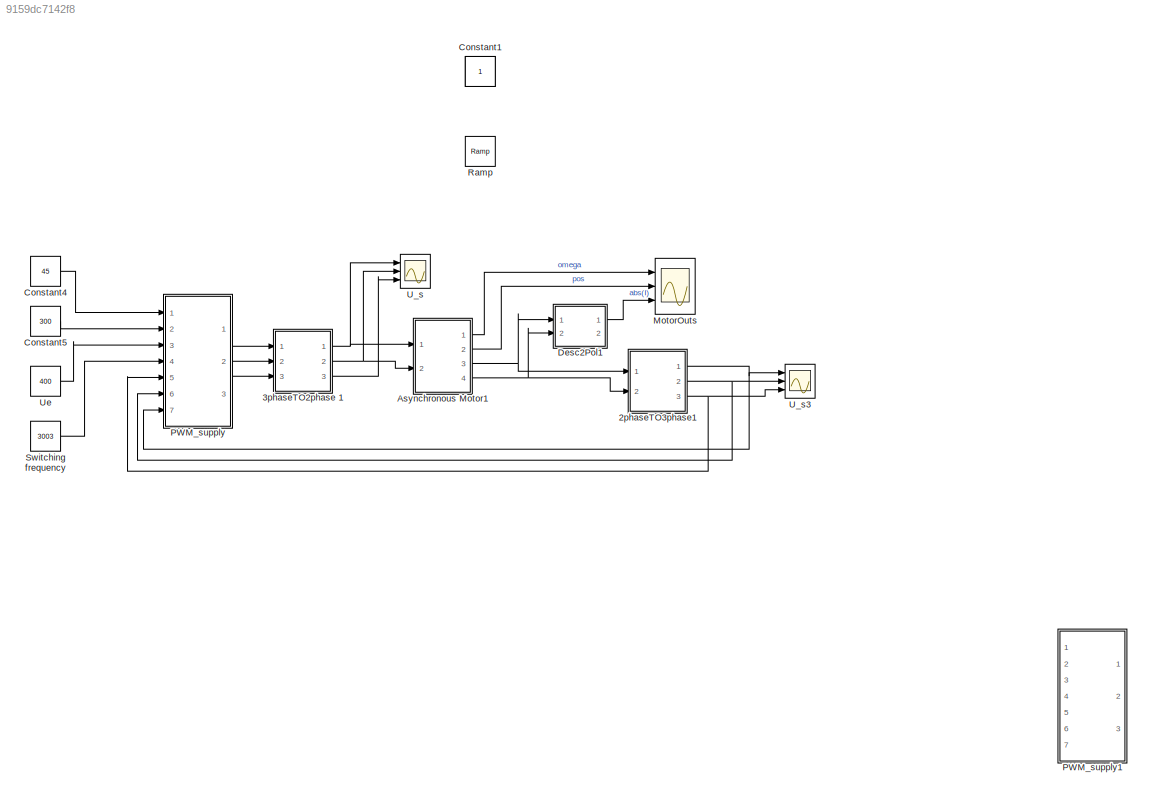
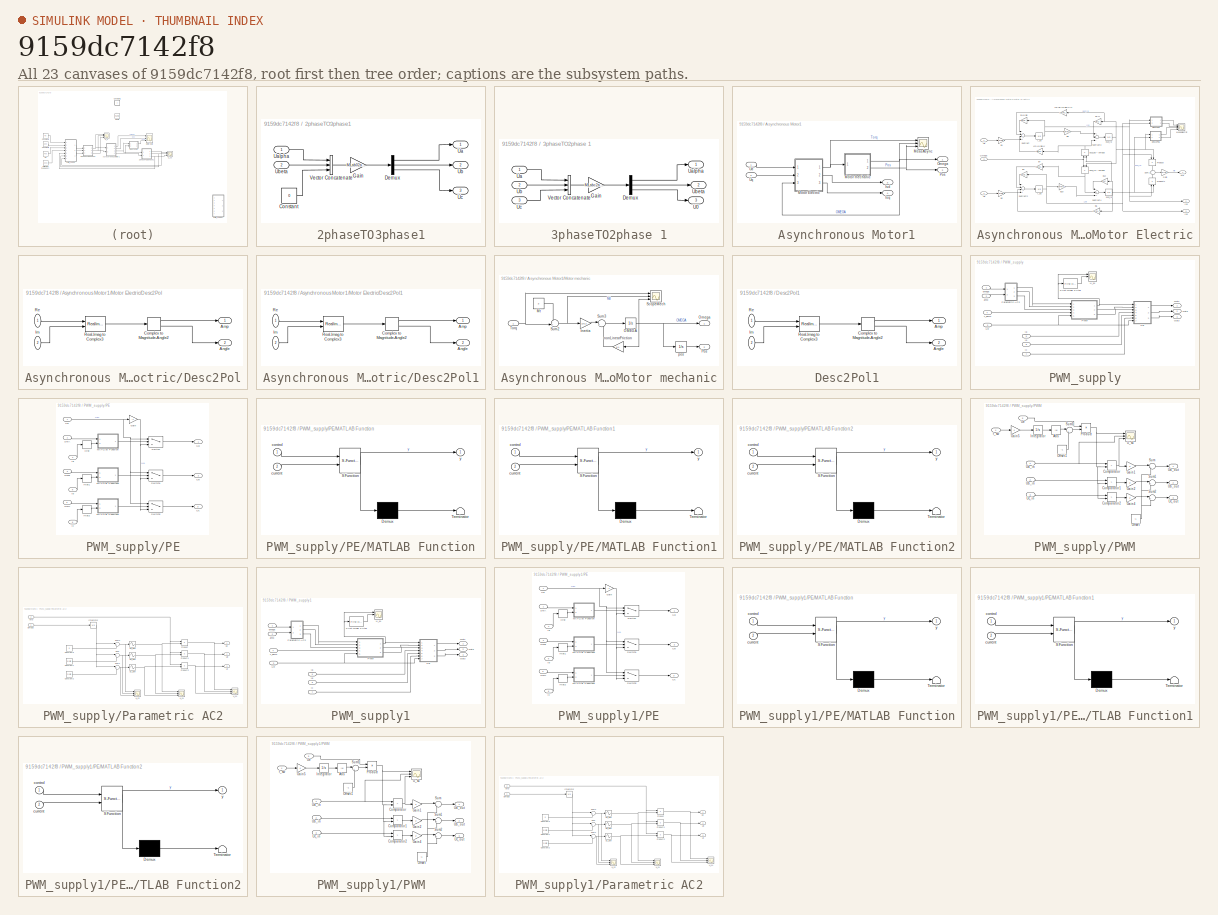
[diagram: thumbnail index - all 23 canvases of the model, root first then tree order]
MODEL slx_9159dc7142f8
KIND model
CONFIG AbsTol = auto
CONFIG FixedStep = 0.00003
CONFIG MaxStep = auto
CONFIG MinStep = auto
CONFIG RelTol = 1e-3
CONFIG SampleTimeConstraint = Unconstrained
CONFIG Solver = FixedStepAuto
CONFIG SolverMode = Auto
CONFIG SolverName = FixedStepAuto
CONFIG StartTime = 0.0
CONFIG StopTime = 3
BLOCK [Constant]  
  IOType = siggen
BLOCK [SubSystem] 2phaseTO3phase1
  Ports = [2, 3]
  RequestExecContextInheritance = off
  Variant = off
BLOCK [Constant] 2phaseTO3phase1/Constant
  Value = 0
BLOCK [Demux] 2phaseTO3phase1/Demux
  DisplayOption = bar
  Outputs = 3
  Ports = [1, 3]
BLOCK [Gain] 2phaseTO3phase1/Gain
  Gain = M_ab02abc
  Multiplication = Matrix(K*u)
  OutDataTypeStr = Inherit: Inherit via internal rule
  ParamDataTypeStr = Inherit: Inherit via internal rule
  SaturateOnIntegerOverflow = off
BLOCK [Outport] 2phaseTO3phase1/Ua
  IconDisplay = Port number
BLOCK [Inport] 2phaseTO3phase1/Ualpha
  IconDisplay = Port number
BLOCK [Outport] 2phaseTO3phase1/Ub
  IconDisplay = Port number
  Port = 2
BLOCK [Inport] 2phaseTO3phase1/Ubeta
  IconDisplay = Port number
  Port = 2
BLOCK [Outport] 2phaseTO3phase1/Uc
  IconDisplay = Port number
  Port = 3
BLOCK [Concatenate] 2phaseTO3phase1/Vector Concatenate
  NumInputs = 3
  Ports = [3, 1]
BLOCK [SubSystem] 3phaseTO2phase 1
  Ports = [3, 3]
  RequestExecContextInheritance = off
  Variant = off
BLOCK [Demux] 3phaseTO2phase 1/Demux
  DisplayOption = bar
  Outputs = 3
  Ports = [1, 3]
BLOCK [Gain] 3phaseTO2phase 1/Gain
  Gain = M_abc2ab0
  Multiplication = Matrix(K*u)
  OutDataTypeStr = Inherit: Inherit via internal rule
  ParamDataTypeStr = Inherit: Inherit via internal rule
  SaturateOnIntegerOverflow = off
BLOCK [Outport] 3phaseTO2phase 1/U0
  IconDisplay = Port number
  Port = 3
BLOCK [Inport] 3phaseTO2phase 1/Ua
  IconDisplay = Port number
BLOCK [Outport] 3phaseTO2phase 1/Ualpha
  IconDisplay = Port number
BLOCK [Inport] 3phaseTO2phase 1/Ub
  IconDisplay = Port number
  Port = 2
BLOCK [Outport] 3phaseTO2phase 1/Ubeta
  IconDisplay = Port number
  Port = 2
BLOCK [Inport] 3phaseTO2phase 1/Uc
  IconDisplay = Port number
  Port = 3
BLOCK [Concatenate] 3phaseTO2phase 1/Vector Concatenate
  NumInputs = 3
  Ports = [3, 1]
BLOCK [SubSystem] Asynchronous Motor1
  Ports = [2, 4]
  RequestExecContextInheritance = off
  Variant = off
BLOCK [Outport] Asynchronous Motor1/Isd
  IconDisplay = Port number
  Port = 3
BLOCK [Outport] Asynchronous Motor1/Isq
  IconDisplay = Port number
  Port = 4
BLOCK [Scope] Asynchronous Motor1/MeasAsync
  NumInputPorts = 3
  Ports = [3]
  ScopeSpecificationString = Simulink.scopes.TimeScopeBlockCfg('CurrentConfiguration', extmgr.ConfigurationSet(extmgr.Configuration('Core','General UI',true),extmgr.Configuration('Core','Source UI',true),extmgr.Configuration('Sources','WiredSimulink',true,'DataLoggingVariableName','ScopeData3'),extmgr.Configuration('Visuals','Time Domain',true,'SerializedDisplays',{struct('MinYLimReal','-4.72264','MaxYLimReal','13.11382','YLa...<+1438ch>
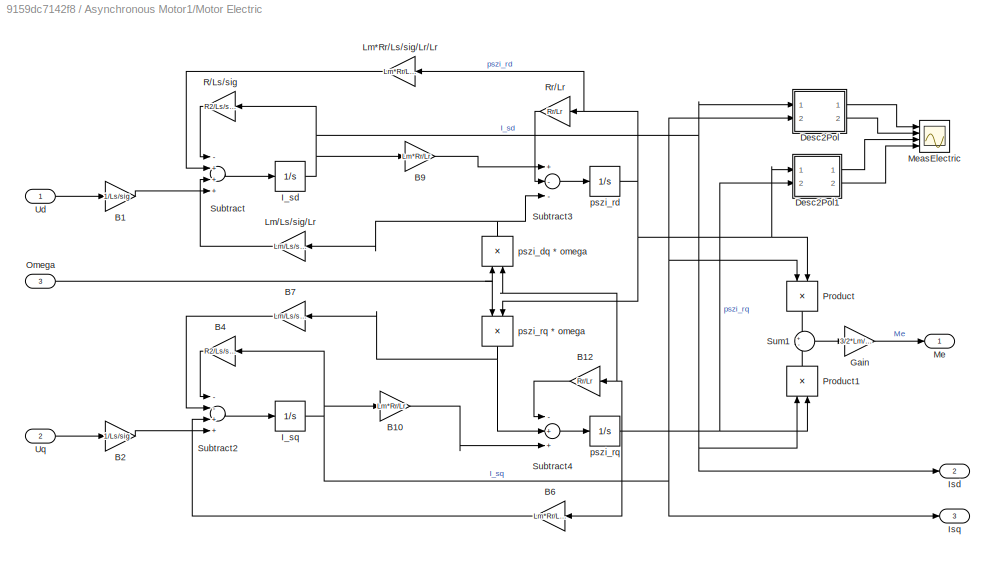
BLOCK [SubSystem] Asynchronous Motor1/Motor Electric
  Ports = [3, 3]
  RequestExecContextInheritance = off
  Variant = off
BLOCK [Gain] Asynchronous Motor1/Motor Electric/B1
  Gain = 1/Ls/sig
  Multiplication = Matrix(K*u)
  OutDataTypeStr = Inherit: Inherit via internal rule
  ParamDataTypeStr = Inherit: Inherit via internal rule
  SaturateOnIntegerOverflow = off
BLOCK [Gain] Asynchronous Motor1/Motor Electric/B10
  Gain = Lm*Rr/Lr
  Multiplication = Matrix(K*u)
  OutDataTypeStr = Inherit: Inherit via internal rule
  ParamDataTypeStr = Inherit: Inherit via internal rule
  SaturateOnIntegerOverflow = off
BLOCK [Gain] Asynchronous Motor1/Motor Electric/B12
  Gain = Rr/Lr
  Multiplication = Matrix(K*u)
  OutDataTypeStr = Inherit: Inherit via internal rule
  ParamDataTypeStr = Inherit: Inherit via internal rule
  SaturateOnIntegerOverflow = off
BLOCK [Gain] Asynchronous Motor1/Motor Electric/B2
  Gain = 1/Ls/sig
  Multiplication = Matrix(K*u)
  OutDataTypeStr = Inherit: Inherit via internal rule
  ParamDataTypeStr = Inherit: Inherit via internal rule
  SaturateOnIntegerOverflow = off
BLOCK [Gain] Asynchronous Motor1/Motor Electric/B4
  Gain = R2/Ls/sig
  Multiplication = Matrix(K*u)
  OutDataTypeStr = Inherit: Inherit via internal rule
  ParamDataTypeStr = Inherit: Inherit via internal rule
  SaturateOnIntegerOverflow = off
BLOCK [Gain] Asynchronous Motor1/Motor Electric/B6
  Gain = Lm*Rr/Ls/sig/Lr/Lr
  Multiplication = Matrix(K*u)
  OutDataTypeStr = Inherit: Inherit via internal rule
  ParamDataTypeStr = Inherit: Inherit via internal rule
  SaturateOnIntegerOverflow = off
BLOCK [Gain] Asynchronous Motor1/Motor Electric/B7
  Gain = Lm/Ls/sig/Lr
  Multiplication = Matrix(K*u)
  OutDataTypeStr = Inherit: Inherit via internal rule
  ParamDataTypeStr = Inherit: Inherit via internal rule
  SaturateOnIntegerOverflow = off
BLOCK [Gain] Asynchronous Motor1/Motor Electric/B9
  Gain = Lm*Rr/Lr
  Multiplication = Matrix(K*u)
  OutDataTypeStr = Inherit: Inherit via internal rule
  ParamDataTypeStr = Inherit: Inherit via internal rule
  SaturateOnIntegerOverflow = off
BLOCK [SubSystem] Asynchronous Motor1/Motor Electric/Desc2Pol
  Ports = [2, 2]
  RequestExecContextInheritance = off
  Variant = off
BLOCK [Outport] Asynchronous Motor1/Motor Electric/Desc2Pol/Amp
  IconDisplay = Port number
BLOCK [Outport] Asynchronous Motor1/Motor Electric/Desc2Pol/Angle
  IconDisplay = Port number
  Port = 2
BLOCK [ComplexToMagnitudeAngle] Asynchronous Motor1/Motor Electric/Desc2Pol/Complex to Magnitude-Angle2
  Ports = [1, 2]
BLOCK [Inport] Asynchronous Motor1/Motor Electric/Desc2Pol/Im
  IconDisplay = Port number
  Port = 2
BLOCK [Inport] Asynchronous Motor1/Motor Electric/Desc2Pol/Re
  IconDisplay = Port number
BLOCK [RealImagToComplex] Asynchronous Motor1/Motor Electric/Desc2Pol/Real-Imag to Complex3
  Ports = [2, 1]
BLOCK [SubSystem] Asynchronous Motor1/Motor Electric/Desc2Pol1
  Ports = [2, 2]
  RequestExecContextInheritance = off
  Variant = off
BLOCK [Outport] Asynchronous Motor1/Motor Electric/Desc2Pol1/Amp
  IconDisplay = Port number
BLOCK [Outport] Asynchronous Motor1/Motor Electric/Desc2Pol1/Angle
  IconDisplay = Port number
  Port = 2
BLOCK [ComplexToMagnitudeAngle] Asynchronous Motor1/Motor Electric/Desc2Pol1/Complex to Magnitude-Angle2
  Ports = [1, 2]
BLOCK [Inport] Asynchronous Motor1/Motor Electric/Desc2Pol1/Im
  IconDisplay = Port number
  Port = 2
BLOCK [Inport] Asynchronous Motor1/Motor Electric/Desc2Pol1/Re
  IconDisplay = Port number
BLOCK [RealImagToComplex] Asynchronous Motor1/Motor Electric/Desc2Pol1/Real-Imag to Complex3
  Ports = [2, 1]
BLOCK [Gain] Asynchronous Motor1/Motor Electric/Gain
  Gain = 3/2*Lm/Lr
  OutDataTypeStr = Inherit: Inherit via internal rule
  ParamDataTypeStr = Inherit: Inherit via internal rule
  SaturateOnIntegerOverflow = off
BLOCK [Integrator] Asynchronous Motor1/Motor Electric/I_sd
  Ports = [1, 1]
BLOCK [Integrator] Asynchronous Motor1/Motor Electric/I_sq
  Ports = [1, 1]
BLOCK [Outport] Asynchronous Motor1/Motor Electric/Isd
  IconDisplay = Port number
  Port = 2
BLOCK [Outport] Asynchronous Motor1/Motor Electric/Isq
  IconDisplay = Port number
  Port = 3
BLOCK [Gain] Asynchronous Motor1/Motor Electric/Lm*Rr//Ls//sig//Lr//Lr
  Gain = Lm*Rr/Ls/sig/Lr/Lr
  Multiplication = Matrix(K*u)
  OutDataTypeStr = Inherit: Inherit via internal rule
  ParamDataTypeStr = Inherit: Inherit via internal rule
  SaturateOnIntegerOverflow = off
BLOCK [Gain] Asynchronous Motor1/Motor Electric/Lm//Ls//sig//Lr
  Gain = Lm/Ls/sig/Lr
  Multiplication = Matrix(K*u)
  OutDataTypeStr = Inherit: Inherit via internal rule
  ParamDataTypeStr = Inherit: Inherit via internal rule
  SaturateOnIntegerOverflow = off
BLOCK [Outport] Asynchronous Motor1/Motor Electric/Me
  IconDisplay = Port number
BLOCK [Scope] Asynchronous Motor1/Motor Electric/MeasElectric
  NumInputPorts = 4
  Ports = [4]
  ScopeSpecificationString = Simulink.scopes.TimeScopeBlockCfg('CurrentConfiguration', extmgr.ConfigurationSet(extmgr.Configuration('Core','General UI',true),extmgr.Configuration('Core','Source UI',true),extmgr.Configuration('Sources','WiredSimulink',true,'DataLoggingVariableName','ScopeData2'),extmgr.Configuration('Visuals','Time Domain',true,'SerializedDisplays',{struct('MinYLimReal','-15.09969','MaxYLimReal','104.48314','Y...<+1472ch>
BLOCK [Inport] Asynchronous Motor1/Motor Electric/Omega
  IconDisplay = Port number
  Port = 3
BLOCK [Product] Asynchronous Motor1/Motor Electric/Product
  InputSameDT = off
  OutDataTypeStr = Inherit: Inherit via internal rule
  Ports = [2, 1]
  RndMeth = Floor
  SaturateOnIntegerOverflow = off
BLOCK [Product] Asynchronous Motor1/Motor Electric/Product1
  InputSameDT = off
  OutDataTypeStr = Inherit: Inherit via internal rule
  Ports = [2, 1]
  RndMeth = Floor
  SaturateOnIntegerOverflow = off
BLOCK [Gain] Asynchronous Motor1/Motor Electric/R//Ls//sig
  Gain = R2/Ls/sig
  Multiplication = Matrix(K*u)
  OutDataTypeStr = Inherit: Inherit via internal rule
  ParamDataTypeStr = Inherit: Inherit via internal rule
  SaturateOnIntegerOverflow = off
BLOCK [Gain] Asynchronous Motor1/Motor Electric/Rr//Lr
  Gain = Rr/Lr
  Multiplication = Matrix(K*u)
  OutDataTypeStr = Inherit: Inherit via internal rule
  ParamDataTypeStr = Inherit: Inherit via internal rule
  SaturateOnIntegerOverflow = off
BLOCK [Sum] Asynchronous Motor1/Motor Electric/Subtract
  InputSameDT = off
  Inputs = -+++
  OutDataTypeStr = Inherit: Inherit via internal rule
  Ports = [4, 1]
  SaturateOnIntegerOverflow = off
BLOCK [Sum] Asynchronous Motor1/Motor Electric/Subtract2
  InputSameDT = off
  Inputs = --++
  OutDataTypeStr = Inherit: Inherit via internal rule
  Ports = [4, 1]
  SaturateOnIntegerOverflow = off
BLOCK [Sum] Asynchronous Motor1/Motor Electric/Subtract3
  InputSameDT = off
  Inputs = +--
  OutDataTypeStr = Inherit: Inherit via internal rule
  Ports = [3, 1]
  SaturateOnIntegerOverflow = off
BLOCK [Sum] Asynchronous Motor1/Motor Electric/Subtract4
  InputSameDT = off
  Inputs = -++
  OutDataTypeStr = Inherit: Inherit via internal rule
  Ports = [3, 1]
  SaturateOnIntegerOverflow = off
BLOCK [Sum] Asynchronous Motor1/Motor Electric/Sum1
  IconShape = round
  InputSameDT = off
  Inputs = +-
  OutDataTypeStr = Inherit: Inherit via internal rule
  Ports = [2, 1]
  SaturateOnIntegerOverflow = off
BLOCK [Inport] Asynchronous Motor1/Motor Electric/Ud
  IconDisplay = Port number
BLOCK [Inport] Asynchronous Motor1/Motor Electric/Uq
  IconDisplay = Port number
  Port = 2
BLOCK [Product] Asynchronous Motor1/Motor Electric/pszi_dq * omega
  InputSameDT = off
  OutDataTypeStr = Inherit: Inherit via internal rule
  Ports = [2, 1]
  RndMeth = Floor
  SaturateOnIntegerOverflow = off
BLOCK [Integrator] Asynchronous Motor1/Motor Electric/pszi_rd
  Ports = [1, 1]
BLOCK [Integrator] Asynchronous Motor1/Motor Electric/pszi_rq 
  Ports = [1, 1]
BLOCK [Product] Asynchronous Motor1/Motor Electric/pszi_rq * omega
  InputSameDT = off
  OutDataTypeStr = Inherit: Inherit via internal rule
  Ports = [2, 1]
  RndMeth = Floor
  SaturateOnIntegerOverflow = off
BLOCK [SubSystem] Asynchronous Motor1/Motor mechanic
  Ports = [1, 2]
  RequestExecContextInheritance = off
  Variant = off
BLOCK [Gain] Asynchronous Motor1/Motor mechanic/Inertia
  Gain = 1/0.2
  OutDataTypeStr = Inherit: Inherit via internal rule
  ParamDataTypeStr = Inherit: Inherit via internal rule
  SaturateOnIntegerOverflow = off
BLOCK [Constant] Asynchronous Motor1/Motor mechanic/Mt
  Value = 3
BLOCK [Integrator] Asynchronous Motor1/Motor mechanic/OMEGA
  Ports = [1, 1]
BLOCK [Outport] Asynchronous Motor1/Motor mechanic/Omega
  IconDisplay = Port number
BLOCK [Outport] Asynchronous Motor1/Motor mechanic/Pos
  IconDisplay = Port number
  Port = 2
BLOCK [Scope] Asynchronous Motor1/Motor mechanic/ScopeMech
  NumInputPorts = 3
  Ports = [3]
  ScopeSpecificationString = Simulink.scopes.TimeScopeBlockCfg('CurrentConfiguration', extmgr.ConfigurationSet(extmgr.Configuration('Core','General UI',true),extmgr.Configuration('Core','Source UI',true),extmgr.Configuration('Sources','WiredSimulink',true,'DataLoggingVariableName','ScopeData2'),extmgr.Configuration('Visuals','Time Domain',true,'SerializedDisplays',{struct('MinYLimReal','90.00000','MaxYLimReal','110.00000','YL...<+2799ch>
BLOCK [Sum] Asynchronous Motor1/Motor mechanic/Sum2
  IconShape = round
  InputSameDT = off
  Inputs = -+|
  OutDataTypeStr = Inherit: Inherit via internal rule
  Ports = [2, 1]
  SaturateOnIntegerOverflow = off
BLOCK [Sum] Asynchronous Motor1/Motor mechanic/Sum3
  IconShape = round
  InputSameDT = off
  Inputs = |+-
  OutDataTypeStr = Inherit: Inherit via internal rule
  Ports = [2, 1]
  SaturateOnIntegerOverflow = off
BLOCK [Inport] Asynchronous Motor1/Motor mechanic/Torq 
  IconDisplay = Port number
BLOCK [Gain] Asynchronous Motor1/Motor mechanic/nonLinearFriction
  Gain = 0.1
  OutDataTypeStr = Inherit: Inherit via internal rule
  ParamDataTypeStr = Inherit: Inherit via internal rule
  SaturateOnIntegerOverflow = off
BLOCK [Integrator] Asynchronous Motor1/Motor mechanic/pos
  Ports = [1, 1]
  WrapState = on
BLOCK [Outport] Asynchronous Motor1/Omega
  IconDisplay = Port number
BLOCK [Outport] Asynchronous Motor1/Pos
  IconDisplay = Port number
  Port = 2
BLOCK [Inport] Asynchronous Motor1/Ud
  IconDisplay = Port number
BLOCK [Inport] Asynchronous Motor1/Uq
  IconDisplay = Port number
  Port = 2
BLOCK [Constant] Constant1
  IOType = siggen
BLOCK [Constant] Constant4
  Value = 45
BLOCK [Constant] Constant5
  Value = 300
BLOCK [SubSystem] Desc2Pol1
  Ports = [2, 2]
  RequestExecContextInheritance = off
  Variant = off
BLOCK [Outport] Desc2Pol1/Amp
  IconDisplay = Port number
BLOCK [Outport] Desc2Pol1/Angle
  IconDisplay = Port number
  Port = 2
BLOCK [ComplexToMagnitudeAngle] Desc2Pol1/Complex to Magnitude-Angle2
  Ports = [1, 2]
BLOCK [Inport] Desc2Pol1/Im
  IconDisplay = Port number
  Port = 2
BLOCK [Inport] Desc2Pol1/Re
  IconDisplay = Port number
BLOCK [RealImagToComplex] Desc2Pol1/Real-Imag to Complex3
  Ports = [2, 1]
BLOCK [Scope] MotorOuts
  NumInputPorts = 3
  Ports = [3]
  ScopeSpecificationString = Simulink.scopes.TimeScopeBlockCfg('CurrentConfiguration', extmgr.ConfigurationSet(extmgr.Configuration('Core','General UI',true),extmgr.Configuration('Core','Source UI',true),extmgr.Configuration('Sources','WiredSimulink',true,'DataLoggingVariableName','ScopeData1','DataLogging',true),extmgr.Configuration('Visuals','Time Domain',true,'SerializedDisplays',{struct('MinYLimReal','-9.96539','MaxYLimRe...<+1682ch>
BLOCK [SubSystem] PWM_supply
  Ports = [7, 3]
  RequestExecContextInheritance = off
  Variant = off
BLOCK [Reference] PWM_supply/First-Order Filter  REF=powerlib_meascontrol/Filters/First-Order
Filter
  Ports = [1, 1]
  SourceBlock = powerlib_meascontrol/Filters/First-Order\nFilter
  SourceType = First-Order Filter
BLOCK [Inport] PWM_supply/Ia
  IconDisplay = Port number
  Port = 5
BLOCK [Inport] PWM_supply/Ib
  IconDisplay = Port number
  Port = 6
BLOCK [Inport] PWM_supply/Ic
  IconDisplay = Port number
  Port = 7
BLOCK [Outport] PWM_supply/Out1
  IconDisplay = Port number
BLOCK [Outport] PWM_supply/Out2
  IconDisplay = Port number
  Port = 2
BLOCK [Outport] PWM_supply/Out3
  IconDisplay = Port number
  Port = 3
BLOCK [SubSystem] PWM_supply/PE
  Ports = [7, 3]
  RequestExecContextInheritance = off
  Variant = off
BLOCK [Gain] PWM_supply/PE/Gain
  Gain = -1
  OutDataTypeStr = Inherit: Inherit via internal rule
  ParamDataTypeStr = Inherit: Inherit via internal rule
  SaturateOnIntegerOverflow = off
BLOCK [Relay] PWM_supply/PE/Hist
  InputProcessing = Elements as channels (sample based)
  OffOutputValue = -1
  OffSwitchValue = -0.1
  OnSwitchValue = 0.1
BLOCK [Relay] PWM_supply/PE/Hist1
  InputProcessing = Elements as channels (sample based)
  OffOutputValue = -1
  OffSwitchValue = -0.1
  OnSwitchValue = 0.1
BLOCK [Relay] PWM_supply/PE/Hist2
  InputProcessing = Elements as channels (sample based)
  OffOutputValue = -1
  OffSwitchValue = -0.1
  OnSwitchValue = 0.1
BLOCK [Inport] PWM_supply/PE/Ia
  IconDisplay = Port number
  Port = 4
BLOCK [Inport] PWM_supply/PE/Ib
  IconDisplay = Port number
  Port = 5
BLOCK [Inport] PWM_supply/PE/Ic
  IconDisplay = Port number
  Port = 6
BLOCK [SubSystem] PWM_supply/PE/MATLAB Function
  ErrorFcn = Stateflow.Translate.translate
  PermitHierarchicalResolution = ExplicitOnly
  Ports = [2, 1]
  RequestExecContextInheritance = off
  SFBlockType = MATLAB Function
  TreatAsAtomicUnit = on
  Variant = off
BLOCK [Demux] PWM_supply/PE/MATLAB Function/ Demux 
  Outputs = 1
  Ports = [1, 1]
BLOCK [S-Function] PWM_supply/PE/MATLAB Function/ SFunction 
  EnableBusSupport = on
  FunctionName = sf_sfun
  PortCounts = [2 2]
  Ports = [2, 2]
  SFunctionDeploymentMode = off
  Tag = Stateflow S-Function constant_f_V_PWM 2
BLOCK [Terminator] PWM_supply/PE/MATLAB Function/ Terminator 
BLOCK [Inport] PWM_supply/PE/MATLAB Function/control
  IconDisplay = Port number
BLOCK [Inport] PWM_supply/PE/MATLAB Function/current
  IconDisplay = Port number
  Port = 2
BLOCK [Outport] PWM_supply/PE/MATLAB Function/y
  IconDisplay = Port number
BLOCK [SubSystem] PWM_supply/PE/MATLAB Function1
  ErrorFcn = Stateflow.Translate.translate
  PermitHierarchicalResolution = ExplicitOnly
  Ports = [2, 1]
  RequestExecContextInheritance = off
  SFBlockType = MATLAB Function
  TreatAsAtomicUnit = on
  Variant = off
BLOCK [Demux] PWM_supply/PE/MATLAB Function1/ Demux 
  Outputs = 1
  Ports = [1, 1]
BLOCK [S-Function] PWM_supply/PE/MATLAB Function1/ SFunction 
  EnableBusSupport = on
  FunctionName = sf_sfun
  PortCounts = [2 2]
  Ports = [2, 2]
  SFunctionDeploymentMode = off
  Tag = Stateflow S-Function constant_f_V_PWM 1
BLOCK [Terminator] PWM_supply/PE/MATLAB Function1/ Terminator 
BLOCK [Inport] PWM_supply/PE/MATLAB Function1/control
  IconDisplay = Port number
BLOCK [Inport] PWM_supply/PE/MATLAB Function1/current
  IconDisplay = Port number
  Port = 2
BLOCK [Outport] PWM_supply/PE/MATLAB Function1/y
  IconDisplay = Port number
BLOCK [SubSystem] PWM_supply/PE/MATLAB Function2
  ErrorFcn = Stateflow.Translate.translate
  PermitHierarchicalResolution = ExplicitOnly
  Ports = [2, 1]
  RequestExecContextInheritance = off
  SFBlockType = MATLAB Function
  TreatAsAtomicUnit = on
  Variant = off
BLOCK [Demux] PWM_supply/PE/MATLAB Function2/ Demux 
  Outputs = 1
  Ports = [1, 1]
BLOCK [S-Function] PWM_supply/PE/MATLAB Function2/ SFunction 
  EnableBusSupport = on
  FunctionName = sf_sfun
  PortCounts = [2 2]
  Ports = [2, 2]
  SFunctionDeploymentMode = off
  Tag = Stateflow S-Function constant_f_V_PWM 3
BLOCK [Terminator] PWM_supply/PE/MATLAB Function2/ Terminator 
BLOCK [Inport] PWM_supply/PE/MATLAB Function2/control
  IconDisplay = Port number
BLOCK [Inport] PWM_supply/PE/MATLAB Function2/current
  IconDisplay = Port number
  Port = 2
BLOCK [Outport] PWM_supply/PE/MATLAB Function2/y
  IconDisplay = Port number
BLOCK [Inport] PWM_supply/PE/SwA
  IconDisplay = Port number
BLOCK [Inport] PWM_supply/PE/SwB
  IconDisplay = Port number
  Port = 2
BLOCK [Inport] PWM_supply/PE/SwC
  IconDisplay = Port number
  Port = 3
BLOCK [Switch] PWM_supply/PE/Switch
  Criteria = u2 > Threshold
  InputSameDT = off
  SaturateOnIntegerOverflow = off
  Threshold = 0.5
BLOCK [Switch] PWM_supply/PE/Switch1
  Criteria = u2 > Threshold
  InputSameDT = off
  SaturateOnIntegerOverflow = off
  Threshold = 0.5
BLOCK [Switch] PWM_supply/PE/Switch2
  Criteria = u2 > Threshold
  InputSameDT = off
  SaturateOnIntegerOverflow = off
  Threshold = 0.5
BLOCK [Outport] PWM_supply/PE/Ua
  IconDisplay = Port number
BLOCK [Outport] PWM_supply/PE/Ub
  IconDisplay = Port number
  Port = 2
BLOCK [Outport] PWM_supply/PE/Uc
  IconDisplay = Port number
  Port = 3
BLOCK [Inport] PWM_supply/PE/Ue
  IconDisplay = Port number
  Port = 7
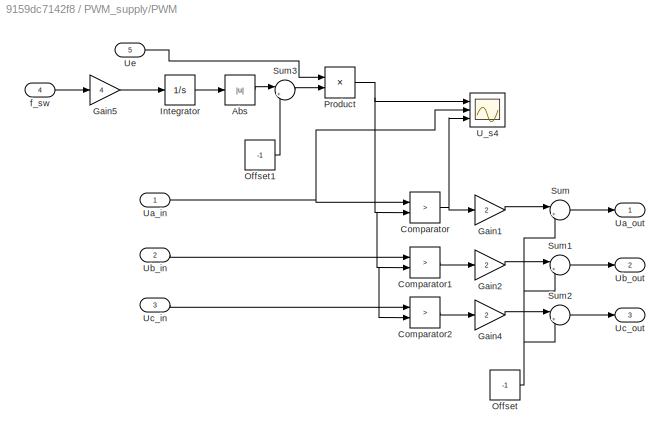
BLOCK [SubSystem] PWM_supply/PWM
  Ports = [5, 3]
  RequestExecContextInheritance = off
  Variant = off
BLOCK [Abs] PWM_supply/PWM/Abs
  SaturateOnIntegerOverflow = off
BLOCK [RelationalOperator] PWM_supply/PWM/Comparator
  InputSameDT = off
  Operator = >
  OutDataTypeStr = boolean
  Ports = [2, 1]
BLOCK [RelationalOperator] PWM_supply/PWM/Comparator1
  InputSameDT = off
  Operator = >
  OutDataTypeStr = boolean
  Ports = [2, 1]
BLOCK [RelationalOperator] PWM_supply/PWM/Comparator2
  InputSameDT = off
  Operator = >
  OutDataTypeStr = boolean
  Ports = [2, 1]
BLOCK [Gain] PWM_supply/PWM/Gain1
  Gain = 2
  OutDataTypeStr = Inherit: Inherit via internal rule
  ParamDataTypeStr = Inherit: Inherit via internal rule
  SaturateOnIntegerOverflow = off
BLOCK [Gain] PWM_supply/PWM/Gain2
  Gain = 2
  OutDataTypeStr = Inherit: Inherit via internal rule
  ParamDataTypeStr = Inherit: Inherit via internal rule
  SaturateOnIntegerOverflow = off
BLOCK [Gain] PWM_supply/PWM/Gain4
  Gain = 2
  OutDataTypeStr = Inherit: Inherit via internal rule
  ParamDataTypeStr = Inherit: Inherit via internal rule
  SaturateOnIntegerOverflow = off
BLOCK [Gain] PWM_supply/PWM/Gain5
  Gain = 4
  OutDataTypeStr = Inherit: Inherit via internal rule
  ParamDataTypeStr = Inherit: Inherit via internal rule
  SaturateOnIntegerOverflow = off
BLOCK [Integrator] PWM_supply/PWM/Integrator
  Ports = [1, 1]
  WrapState = on
  WrappedStateLowerValue = -2
  WrappedStateUpperValue = 2
BLOCK [Constant] PWM_supply/PWM/Offset
  Value = -1
BLOCK [Constant] PWM_supply/PWM/Offset1
  Value = -1
BLOCK [Product] PWM_supply/PWM/Product
  InputSameDT = off
  OutDataTypeStr = Inherit: Inherit via internal rule
  Ports = [2, 1]
  RndMeth = Floor
  SaturateOnIntegerOverflow = off
BLOCK [Sum] PWM_supply/PWM/Sum
  IconShape = round
  InputSameDT = off
  Inputs = |++
  OutDataTypeStr = Inherit: Inherit via internal rule
  Ports = [2, 1]
  SaturateOnIntegerOverflow = off
BLOCK [Sum] PWM_supply/PWM/Sum1
  IconShape = round
  InputSameDT = off
  Inputs = |++
  OutDataTypeStr = Inherit: Inherit via internal rule
  Ports = [2, 1]
  SaturateOnIntegerOverflow = off
BLOCK [Sum] PWM_supply/PWM/Sum2
  IconShape = round
  InputSameDT = off
  Inputs = |++
  OutDataTypeStr = Inherit: Inherit via internal rule
  Ports = [2, 1]
  SaturateOnIntegerOverflow = off
BLOCK [Sum] PWM_supply/PWM/Sum3
  IconShape = round
  InputSameDT = off
  Inputs = |++
  OutDataTypeStr = Inherit: Inherit via internal rule
  Ports = [2, 1]
  SaturateOnIntegerOverflow = off
BLOCK [Scope] PWM_supply/PWM/U_s4
  NumInputPorts = 3
  Ports = [3]
  ScopeSpecificationString = Simulink.scopes.TimeScopeBlockCfg('CurrentConfiguration', extmgr.ConfigurationSet(extmgr.Configuration('Core','General UI',true),extmgr.Configuration('Core','Source UI',true),extmgr.Configuration('Sources','WiredSimulink',true,'DataLoggingVariableName','ScopeData11'),extmgr.Configuration('Visuals','Time Domain',true,'SerializedDisplays',{struct('MinYLimReal','-378.74325','MaxYLimReal','378.74925',...<+3078ch>
BLOCK [Inport] PWM_supply/PWM/Ua_in
  IconDisplay = Port number
BLOCK [Outport] PWM_supply/PWM/Ua_out
  IconDisplay = Port number
BLOCK [Inport] PWM_supply/PWM/Ub_in
  IconDisplay = Port number
  Port = 2
BLOCK [Outport] PWM_supply/PWM/Ub_out
  IconDisplay = Port number
  Port = 2
BLOCK [Inport] PWM_supply/PWM/Uc_in
  IconDisplay = Port number
  Port = 3
BLOCK [Outport] PWM_supply/PWM/Uc_out
  IconDisplay = Port number
  Port = 3
BLOCK [Inport] PWM_supply/PWM/Ue
  IconDisplay = Port number
  Port = 5
BLOCK [Inport] PWM_supply/PWM/f_sw
  IconDisplay = Port number
  Port = 4
BLOCK [SubSystem] PWM_supply/Parametric AC2
  Description = Generates a 3 phase supply with the given angular speed, and aplitude.
  Ports = [2, 3]
  RequestExecContextInheritance = off
  Variant = off
BLOCK [Inport] PWM_supply/Parametric AC2/Amp
  IconDisplay = Port number
  Port = 2
BLOCK [Constant] PWM_supply/Parametric AC2/Constant1
  Value = -2*pi/3
BLOCK [Constant] PWM_supply/Parametric AC2/Constant2
  Value = 2*pi/3
BLOCK [Constant] PWM_supply/Parametric AC2/Constant3
  Value = 0
BLOCK [Integrator] PWM_supply/Parametric AC2/Integrator
  Ports = [1, 1]
  WrapState = on
BLOCK [Inport] PWM_supply/Parametric AC2/Omega
  IconDisplay = Port number
BLOCK [Product] PWM_supply/Parametric AC2/Product
  InputSameDT = off
  OutDataTypeStr = Inherit: Inherit via internal rule
  Ports = [2, 1]
  RndMeth = Floor
  SaturateOnIntegerOverflow = off
BLOCK [Product] PWM_supply/Parametric AC2/Product1
  InputSameDT = off
  OutDataTypeStr = Inherit: Inherit via internal rule
  Ports = [2, 1]
  RndMeth = Floor
  SaturateOnIntegerOverflow = off
BLOCK [Product] PWM_supply/Parametric AC2/Product2
  InputSameDT = off
  OutDataTypeStr = Inherit: Inherit via internal rule
  Ports = [2, 1]
  RndMeth = Floor
  SaturateOnIntegerOverflow = off
BLOCK [Sum] PWM_supply/Parametric AC2/Sum
  IconShape = round
  InputSameDT = off
  Inputs = |++
  OutDataTypeStr = Inherit: Inherit via internal rule
  Ports = [2, 1]
  SaturateOnIntegerOverflow = off
BLOCK [Sum] PWM_supply/Parametric AC2/Sum1
  IconShape = round
  InputSameDT = off
  Inputs = |++
  OutDataTypeStr = Inherit: Inherit via internal rule
  Ports = [2, 1]
  SaturateOnIntegerOverflow = off
BLOCK [Sum] PWM_supply/Parametric AC2/Sum2
  IconShape = round
  InputSameDT = off
  Inputs = |++
  OutDataTypeStr = Inherit: Inherit via internal rule
  Ports = [2, 1]
  SaturateOnIntegerOverflow = off
BLOCK [Scope] PWM_supply/Parametric AC2/U_s1
  NumInputPorts = 3
  Ports = [3]
  ScopeSpecificationString = Simulink.scopes.TimeScopeBlockCfg('CurrentConfiguration', extmgr.ConfigurationSet(extmgr.Configuration('Core','General UI',true),extmgr.Configuration('Core','Source UI',true),extmgr.Configuration('Sources','WiredSimulink',true,'DataLoggingVariableName','ScopeData9'),extmgr.Configuration('Visuals','Time Domain',true,'SerializedDisplays',{struct('MinYLimReal','-1.25','MaxYLimReal','1.25','YLabelReal...<+1391ch>
BLOCK [Scope] PWM_supply/Parametric AC2/U_s2
  NumInputPorts = 3
  Ports = [3]
  ScopeSpecificationString = Simulink.scopes.TimeScopeBlockCfg('CurrentConfiguration', extmgr.ConfigurationSet(extmgr.Configuration('Core','General UI',true),extmgr.Configuration('Core','Source UI',true),extmgr.Configuration('Sources','WiredSimulink',true,'DataLoggingVariableName','ScopeData10'),extmgr.Configuration('Visuals','Time Domain',true,'SerializedDisplays',{struct('MinYLimReal','-6.54476','MaxYLimReal','6.54422','YLa...<+1410ch>
BLOCK [Scope] PWM_supply/Parametric AC2/U_s4
  NumInputPorts = 3
  Ports = [3]
  ScopeSpecificationString = Simulink.scopes.TimeScopeBlockCfg('CurrentConfiguration', extmgr.ConfigurationSet(extmgr.Configuration('Core','General UI',true),extmgr.Configuration('Core','Source UI',true),extmgr.Configuration('Sources','WiredSimulink',true,'DataLoggingVariableName','ScopeData8'),extmgr.Configuration('Visuals','Time Domain',true,'SerializedDisplays',{struct('MinYLimReal','-49999.99999','MaxYLimReal','49999.9999...<+1464ch>
BLOCK [Outport] PWM_supply/Parametric AC2/Ua
  IconDisplay = Port number
BLOCK [Sin] PWM_supply/Parametric AC2/Ua_gen
  Ports = [1, 1]
  SampleTime = 0
  TimeSource = Use external signal
BLOCK [Outport] PWM_supply/Parametric AC2/Ub
  IconDisplay = Port number
  Port = 2
BLOCK [Sin] PWM_supply/Parametric AC2/Ub_gen
  Ports = [1, 1]
  SampleTime = 0
  TimeSource = Use external signal
BLOCK [Outport] PWM_supply/Parametric AC2/Uc
  IconDisplay = Port number
  Port = 3
BLOCK [Sin] PWM_supply/Parametric AC2/Uc_gen
  Ports = [1, 1]
  SampleTime = 0
  TimeSource = Use external signal
BLOCK [Scope] PWM_supply/U_s4
  NumInputPorts = 3
  Ports = [3]
  ScopeSpecificationString = Simulink.scopes.TimeScopeBlockCfg('CurrentConfiguration', extmgr.ConfigurationSet(extmgr.Configuration('Core','General UI',true),extmgr.Configuration('Core','Source UI',true),extmgr.Configuration('Sources','WiredSimulink',true,'DataLoggingVariableName','ScopeData12'),extmgr.Configuration('Visuals','Time Domain',true,'SerializedDisplays',{struct('MinYLimReal','-1.25','MaxYLimReal','1.25','YLabelRea...<+2059ch>
BLOCK [Inport] PWM_supply/Ue
  IconDisplay = Port number
  Port = 3
BLOCK [Inport] PWM_supply/amp
  IconDisplay = Port number
  Port = 2
BLOCK [Inport] PWM_supply/f_pwm
  IconDisplay = Port number
  Port = 4
BLOCK [Inport] PWM_supply/omega
  IconDisplay = Port number
BLOCK [SubSystem] PWM_supply1
  Ports = [7, 3]
  RequestExecContextInheritance = off
  Variant = off
BLOCK [Reference] PWM_supply1/First-Order Filter  REF=powerlib_meascontrol/Filters/First-Order
Filter
  Ports = [1, 1]
  SourceBlock = powerlib_meascontrol/Filters/First-Order\nFilter
  SourceType = First-Order Filter
BLOCK [Inport] PWM_supply1/Ia
  IconDisplay = Port number
  Port = 5
BLOCK [Inport] PWM_supply1/Ib
  IconDisplay = Port number
  Port = 6
BLOCK [Inport] PWM_supply1/Ic
  IconDisplay = Port number
  Port = 7
BLOCK [Outport] PWM_supply1/Out1
  IconDisplay = Port number
BLOCK [Outport] PWM_supply1/Out2
  IconDisplay = Port number
  Port = 2
BLOCK [Outport] PWM_supply1/Out3
  IconDisplay = Port number
  Port = 3
BLOCK [SubSystem] PWM_supply1/PE
  Ports = [7, 3]
  RequestExecContextInheritance = off
  Variant = off
BLOCK [Gain] PWM_supply1/PE/Gain
  Gain = -1
  OutDataTypeStr = Inherit: Inherit via internal rule
  ParamDataTypeStr = Inherit: Inherit via internal rule
  SaturateOnIntegerOverflow = off
BLOCK [Relay] PWM_supply1/PE/Hist
  InputProcessing = Elements as channels (sample based)
  OffOutputValue = -1
  OffSwitchValue = -0.1
  OnSwitchValue = 0.1
BLOCK [Relay] PWM_supply1/PE/Hist1
  InputProcessing = Elements as channels (sample based)
  OffOutputValue = -1
  OffSwitchValue = -0.1
  OnSwitchValue = 0.1
BLOCK [Relay] PWM_supply1/PE/Hist2
  InputProcessing = Elements as channels (sample based)
  OffOutputValue = -1
  OffSwitchValue = -0.1
  OnSwitchValue = 0.1
BLOCK [Inport] PWM_supply1/PE/Ia
  IconDisplay = Port number
  Port = 4
BLOCK [Inport] PWM_supply1/PE/Ib
  IconDisplay = Port number
  Port = 5
BLOCK [Inport] PWM_supply1/PE/Ic
  IconDisplay = Port number
  Port = 6
BLOCK [SubSystem] PWM_supply1/PE/MATLAB Function
  ErrorFcn = Stateflow.Translate.translate
  PermitHierarchicalResolution = ExplicitOnly
  Ports = [2, 1]
  RequestExecContextInheritance = off
  SFBlockType = MATLAB Function
  TreatAsAtomicUnit = on
  Variant = off
BLOCK [Demux] PWM_supply1/PE/MATLAB Function/ Demux 
  Outputs = 1
  Ports = [1, 1]
BLOCK [S-Function] PWM_supply1/PE/MATLAB Function/ SFunction 
  EnableBusSupport = on
  FunctionName = sf_sfun
  PortCounts = [2 2]
  Ports = [2, 2]
  SFunctionDeploymentMode = off
  Tag = Stateflow S-Function constant_f_V_PWM 4
BLOCK [Terminator] PWM_supply1/PE/MATLAB Function/ Terminator 
BLOCK [Inport] PWM_supply1/PE/MATLAB Function/control
  IconDisplay = Port number
BLOCK [Inport] PWM_supply1/PE/MATLAB Function/current
  IconDisplay = Port number
  Port = 2
BLOCK [Outport] PWM_supply1/PE/MATLAB Function/y
  IconDisplay = Port number
BLOCK [SubSystem] PWM_supply1/PE/MATLAB Function1
  ErrorFcn = Stateflow.Translate.translate
  PermitHierarchicalResolution = ExplicitOnly
  Ports = [2, 1]
  RequestExecContextInheritance = off
  SFBlockType = MATLAB Function
  TreatAsAtomicUnit = on
  Variant = off
BLOCK [Demux] PWM_supply1/PE/MATLAB Function1/ Demux 
  Outputs = 1
  Ports = [1, 1]
BLOCK [S-Function] PWM_supply1/PE/MATLAB Function1/ SFunction 
  EnableBusSupport = on
  FunctionName = sf_sfun
  PortCounts = [2 2]
  Ports = [2, 2]
  SFunctionDeploymentMode = off
  Tag = Stateflow S-Function constant_f_V_PWM 5
BLOCK [Terminator] PWM_supply1/PE/MATLAB Function1/ Terminator 
BLOCK [Inport] PWM_supply1/PE/MATLAB Function1/control
  IconDisplay = Port number
BLOCK [Inport] PWM_supply1/PE/MATLAB Function1/current
  IconDisplay = Port number
  Port = 2
BLOCK [Outport] PWM_supply1/PE/MATLAB Function1/y
  IconDisplay = Port number
BLOCK [SubSystem] PWM_supply1/PE/MATLAB Function2
  ErrorFcn = Stateflow.Translate.translate
  PermitHierarchicalResolution = ExplicitOnly
  Ports = [2, 1]
  RequestExecContextInheritance = off
  SFBlockType = MATLAB Function
  TreatAsAtomicUnit = on
  Variant = off
BLOCK [Demux] PWM_supply1/PE/MATLAB Function2/ Demux 
  Outputs = 1
  Ports = [1, 1]
BLOCK [S-Function] PWM_supply1/PE/MATLAB Function2/ SFunction 
  EnableBusSupport = on
  FunctionName = sf_sfun
  PortCounts = [2 2]
  Ports = [2, 2]
  SFunctionDeploymentMode = off
  Tag = Stateflow S-Function constant_f_V_PWM 6
BLOCK [Terminator] PWM_supply1/PE/MATLAB Function2/ Terminator 
BLOCK [Inport] PWM_supply1/PE/MATLAB Function2/control
  IconDisplay = Port number
BLOCK [Inport] PWM_supply1/PE/MATLAB Function2/current
  IconDisplay = Port number
  Port = 2
BLOCK [Outport] PWM_supply1/PE/MATLAB Function2/y
  IconDisplay = Port number
BLOCK [Inport] PWM_supply1/PE/SwA
  IconDisplay = Port number
BLOCK [Inport] PWM_supply1/PE/SwB
  IconDisplay = Port number
  Port = 2
BLOCK [Inport] PWM_supply1/PE/SwC
  IconDisplay = Port number
  Port = 3
BLOCK [Switch] PWM_supply1/PE/Switch
  Criteria = u2 > Threshold
  InputSameDT = off
  SaturateOnIntegerOverflow = off
  Threshold = 0.5
BLOCK [Switch] PWM_supply1/PE/Switch1
  Criteria = u2 > Threshold
  InputSameDT = off
  SaturateOnIntegerOverflow = off
  Threshold = 0.5
BLOCK [Switch] PWM_supply1/PE/Switch2
  Criteria = u2 > Threshold
  InputSameDT = off
  SaturateOnIntegerOverflow = off
  Threshold = 0.5
BLOCK [Outport] PWM_supply1/PE/Ua
  IconDisplay = Port number
BLOCK [Outport] PWM_supply1/PE/Ub
  IconDisplay = Port number
  Port = 2
BLOCK [Outport] PWM_supply1/PE/Uc
  IconDisplay = Port number
  Port = 3
BLOCK [Inport] PWM_supply1/PE/Ue
  IconDisplay = Port number
  Port = 7
BLOCK [SubSystem] PWM_supply1/PWM
  Ports = [5, 3]
  RequestExecContextInheritance = off
  Variant = off
BLOCK [Abs] PWM_supply1/PWM/Abs
  SaturateOnIntegerOverflow = off
BLOCK [RelationalOperator] PWM_supply1/PWM/Comparator
  InputSameDT = off
  Operator = >
  OutDataTypeStr = boolean
  Ports = [2, 1]
BLOCK [RelationalOperator] PWM_supply1/PWM/Comparator1
  InputSameDT = off
  Operator = >
  OutDataTypeStr = boolean
  Ports = [2, 1]
BLOCK [RelationalOperator] PWM_supply1/PWM/Comparator2
  InputSameDT = off
  Operator = >
  OutDataTypeStr = boolean
  Ports = [2, 1]
BLOCK [Gain] PWM_supply1/PWM/Gain1
  Gain = 2
  OutDataTypeStr = Inherit: Inherit via internal rule
  ParamDataTypeStr = Inherit: Inherit via internal rule
  SaturateOnIntegerOverflow = off
BLOCK [Gain] PWM_supply1/PWM/Gain2
  Gain = 2
  OutDataTypeStr = Inherit: Inherit via internal rule
  ParamDataTypeStr = Inherit: Inherit via internal rule
  SaturateOnIntegerOverflow = off
BLOCK [Gain] PWM_supply1/PWM/Gain4
  Gain = 2
  OutDataTypeStr = Inherit: Inherit via internal rule
  ParamDataTypeStr = Inherit: Inherit via internal rule
  SaturateOnIntegerOverflow = off
BLOCK [Gain] PWM_supply1/PWM/Gain5
  Gain = 4
  OutDataTypeStr = Inherit: Inherit via internal rule
  ParamDataTypeStr = Inherit: Inherit via internal rule
  SaturateOnIntegerOverflow = off
BLOCK [Integrator] PWM_supply1/PWM/Integrator
  Ports = [1, 1]
  WrapState = on
  WrappedStateLowerValue = -2
  WrappedStateUpperValue = 2
BLOCK [Constant] PWM_supply1/PWM/Offset
  Value = -1
BLOCK [Constant] PWM_supply1/PWM/Offset1
  Value = -1
BLOCK [Product] PWM_supply1/PWM/Product
  InputSameDT = off
  OutDataTypeStr = Inherit: Inherit via internal rule
  Ports = [2, 1]
  RndMeth = Floor
  SaturateOnIntegerOverflow = off
BLOCK [Sum] PWM_supply1/PWM/Sum
  IconShape = round
  InputSameDT = off
  Inputs = |++
  OutDataTypeStr = Inherit: Inherit via internal rule
  Ports = [2, 1]
  SaturateOnIntegerOverflow = off
BLOCK [Sum] PWM_supply1/PWM/Sum1
  IconShape = round
  InputSameDT = off
  Inputs = |++
  OutDataTypeStr = Inherit: Inherit via internal rule
  Ports = [2, 1]
  SaturateOnIntegerOverflow = off
BLOCK [Sum] PWM_supply1/PWM/Sum2
  IconShape = round
  InputSameDT = off
  Inputs = |++
  OutDataTypeStr = Inherit: Inherit via internal rule
  Ports = [2, 1]
  SaturateOnIntegerOverflow = off
BLOCK [Sum] PWM_supply1/PWM/Sum3
  IconShape = round
  InputSameDT = off
  Inputs = |++
  OutDataTypeStr = Inherit: Inherit via internal rule
  Ports = [2, 1]
  SaturateOnIntegerOverflow = off
BLOCK [Scope] PWM_supply1/PWM/U_s4
  NumInputPorts = 3
  Ports = [3]
  ScopeSpecificationString = Simulink.scopes.TimeScopeBlockCfg('CurrentConfiguration', extmgr.ConfigurationSet(extmgr.Configuration('Core','General UI',true),extmgr.Configuration('Core','Source UI',true),extmgr.Configuration('Sources','WiredSimulink',true,'DataLoggingVariableName','ScopeData11'),extmgr.Configuration('Visuals','Time Domain',true,'SerializedDisplays',{struct('MinYLimReal','-378.74325','MaxYLimReal','378.74925',...<+3078ch>
BLOCK [Inport] PWM_supply1/PWM/Ua_in
  IconDisplay = Port number
BLOCK [Outport] PWM_supply1/PWM/Ua_out
  IconDisplay = Port number
BLOCK [Inport] PWM_supply1/PWM/Ub_in
  IconDisplay = Port number
  Port = 2
BLOCK [Outport] PWM_supply1/PWM/Ub_out
  IconDisplay = Port number
  Port = 2
BLOCK [Inport] PWM_supply1/PWM/Uc_in
  IconDisplay = Port number
  Port = 3
BLOCK [Outport] PWM_supply1/PWM/Uc_out
  IconDisplay = Port number
  Port = 3
BLOCK [Inport] PWM_supply1/PWM/Ue
  IconDisplay = Port number
  Port = 5
BLOCK [Inport] PWM_supply1/PWM/f_sw
  IconDisplay = Port number
  Port = 4
BLOCK [SubSystem] PWM_supply1/Parametric AC2
  Description = Generates a 3 phase supply with the given angular speed, and aplitude.
  Ports = [2, 3]
  RequestExecContextInheritance = off
  Variant = off
BLOCK [Inport] PWM_supply1/Parametric AC2/Amp
  IconDisplay = Port number
  Port = 2
BLOCK [Constant] PWM_supply1/Parametric AC2/Constant1
  Value = -2*pi/3
BLOCK [Constant] PWM_supply1/Parametric AC2/Constant2
  Value = 2*pi/3
BLOCK [Constant] PWM_supply1/Parametric AC2/Constant3
  Value = 0
BLOCK [Integrator] PWM_supply1/Parametric AC2/Integrator
  Ports = [1, 1]
  WrapState = on
BLOCK [Inport] PWM_supply1/Parametric AC2/Omega
  IconDisplay = Port number
BLOCK [Product] PWM_supply1/Parametric AC2/Product
  InputSameDT = off
  OutDataTypeStr = Inherit: Inherit via internal rule
  Ports = [2, 1]
  RndMeth = Floor
  SaturateOnIntegerOverflow = off
BLOCK [Product] PWM_supply1/Parametric AC2/Product1
  InputSameDT = off
  OutDataTypeStr = Inherit: Inherit via internal rule
  Ports = [2, 1]
  RndMeth = Floor
  SaturateOnIntegerOverflow = off
BLOCK [Product] PWM_supply1/Parametric AC2/Product2
  InputSameDT = off
  OutDataTypeStr = Inherit: Inherit via internal rule
  Ports = [2, 1]
  RndMeth = Floor
  SaturateOnIntegerOverflow = off
BLOCK [Sum] PWM_supply1/Parametric AC2/Sum
  IconShape = round
  InputSameDT = off
  Inputs = |++
  OutDataTypeStr = Inherit: Inherit via internal rule
  Ports = [2, 1]
  SaturateOnIntegerOverflow = off
BLOCK [Sum] PWM_supply1/Parametric AC2/Sum1
  IconShape = round
  InputSameDT = off
  Inputs = |++
  OutDataTypeStr = Inherit: Inherit via internal rule
  Ports = [2, 1]
  SaturateOnIntegerOverflow = off
BLOCK [Sum] PWM_supply1/Parametric AC2/Sum2
  IconShape = round
  InputSameDT = off
  Inputs = |++
  OutDataTypeStr = Inherit: Inherit via internal rule
  Ports = [2, 1]
  SaturateOnIntegerOverflow = off
BLOCK [Scope] PWM_supply1/Parametric AC2/U_s1
  NumInputPorts = 3
  Ports = [3]
  ScopeSpecificationString = Simulink.scopes.TimeScopeBlockCfg('CurrentConfiguration', extmgr.ConfigurationSet(extmgr.Configuration('Core','General UI',true),extmgr.Configuration('Core','Source UI',true),extmgr.Configuration('Sources','WiredSimulink',true,'DataLoggingVariableName','ScopeData9'),extmgr.Configuration('Visuals','Time Domain',true,'SerializedDisplays',{struct('MinYLimReal','-1.25','MaxYLimReal','1.25','YLabelReal...<+1391ch>
BLOCK [Scope] PWM_supply1/Parametric AC2/U_s2
  NumInputPorts = 3
  Ports = [3]
  ScopeSpecificationString = Simulink.scopes.TimeScopeBlockCfg('CurrentConfiguration', extmgr.ConfigurationSet(extmgr.Configuration('Core','General UI',true),extmgr.Configuration('Core','Source UI',true),extmgr.Configuration('Sources','WiredSimulink',true,'DataLoggingVariableName','ScopeData10'),extmgr.Configuration('Visuals','Time Domain',true,'SerializedDisplays',{struct('MinYLimReal','-6.54476','MaxYLimReal','6.54422','YLa...<+1410ch>
BLOCK [Scope] PWM_supply1/Parametric AC2/U_s4
  NumInputPorts = 3
  Ports = [3]
  ScopeSpecificationString = Simulink.scopes.TimeScopeBlockCfg('CurrentConfiguration', extmgr.ConfigurationSet(extmgr.Configuration('Core','General UI',true),extmgr.Configuration('Core','Source UI',true),extmgr.Configuration('Sources','WiredSimulink',true,'DataLoggingVariableName','ScopeData8'),extmgr.Configuration('Visuals','Time Domain',true,'SerializedDisplays',{struct('MinYLimReal','-49999.99999','MaxYLimReal','49999.9999...<+1464ch>
BLOCK [Outport] PWM_supply1/Parametric AC2/Ua
  IconDisplay = Port number
BLOCK [Sin] PWM_supply1/Parametric AC2/Ua_gen
  Ports = [1, 1]
  SampleTime = 0
  TimeSource = Use external signal
BLOCK [Outport] PWM_supply1/Parametric AC2/Ub
  IconDisplay = Port number
  Port = 2
BLOCK [Sin] PWM_supply1/Parametric AC2/Ub_gen
  Ports = [1, 1]
  SampleTime = 0
  TimeSource = Use external signal
BLOCK [Outport] PWM_supply1/Parametric AC2/Uc
  IconDisplay = Port number
  Port = 3
BLOCK [Sin] PWM_supply1/Parametric AC2/Uc_gen
  Ports = [1, 1]
  SampleTime = 0
  TimeSource = Use external signal
BLOCK [Scope] PWM_supply1/U_s4
  NumInputPorts = 3
  Ports = [3]
  ScopeSpecificationString = Simulink.scopes.TimeScopeBlockCfg('CurrentConfiguration', extmgr.ConfigurationSet(extmgr.Configuration('Core','General UI',true),extmgr.Configuration('Core','Source UI',true),extmgr.Configuration('Sources','WiredSimulink',true,'DataLoggingVariableName','ScopeData12'),extmgr.Configuration('Visuals','Time Domain',true,'SerializedDisplays',{struct('MinYLimReal','-1.25','MaxYLimReal','1.25','YLabelRea...<+2059ch>
BLOCK [Inport] PWM_supply1/Ue
  IconDisplay = Port number
  Port = 3
BLOCK [Inport] PWM_supply1/amp
  IconDisplay = Port number
  Port = 2
BLOCK [Inport] PWM_supply1/f_pwm
  IconDisplay = Port number
  Port = 4
BLOCK [Inport] PWM_supply1/omega
  IconDisplay = Port number
BLOCK [Reference] Ramp  REF=simulink/Sources/Ramp
  IOType = siggen
  Ports = [0, 1]
  SourceBlock = simulink/Sources/Ramp
  SourceType = Ramp
BLOCK [Constant] Switching frequency
  Value = 3003
BLOCK [Scope] U_s
  NumInputPorts = 3
  Ports = [3]
  ScopeSpecificationString = Simulink.scopes.TimeScopeBlockCfg('CurrentConfiguration', extmgr.ConfigurationSet(extmgr.Configuration('Core','General UI',true),extmgr.Configuration('Core','Source UI',true),extmgr.Configuration('Sources','WiredSimulink',true,'DataLoggingVariableName','ScopeData2'),extmgr.Configuration('Visuals','Time Domain',true,'SerializedDisplays',{struct('MinYLimReal','-666.66667','MaxYLimReal','666.66667','...<+2815ch>
BLOCK [Scope] U_s3
  NumInputPorts = 3
  Ports = [3]
  ScopeSpecificationString = Simulink.scopes.TimeScopeBlockCfg('CurrentConfiguration', extmgr.ConfigurationSet(extmgr.Configuration('Core','General UI',true),extmgr.Configuration('Core','Source UI',true),extmgr.Configuration('Sources','WiredSimulink',true,'DataLoggingVariableName','ScopeData7'),extmgr.Configuration('Visuals','Time Domain',true,'SerializedDisplays',{struct('MinYLimReal','-50.32296','MaxYLimReal','59.15998','YL...<+1461ch>
BLOCK [Constant] Ue
  Value = 400
LINE 2phaseTO3phase1/Constant:1 -> 2phaseTO3phase1/Vector Concatenate:3
LINE 2phaseTO3phase1/Demux:1 -> 2phaseTO3phase1/Ua:1
LINE 2phaseTO3phase1/Demux:2 -> 2phaseTO3phase1/Ub:1
LINE 2phaseTO3phase1/Demux:3 -> 2phaseTO3phase1/Uc:1
LINE 2phaseTO3phase1/Gain:1 -> 2phaseTO3phase1/Demux:1
LINE 2phaseTO3phase1/Ualpha:1 -> 2phaseTO3phase1/Vector Concatenate:1
LINE 2phaseTO3phase1/Ubeta:1 -> 2phaseTO3phase1/Vector Concatenate:2
LINE 2phaseTO3phase1/Vector Concatenate:1 -> 2phaseTO3phase1/Gain:1
NET 2phaseTO3phase1:1 -> PWM_supply:7, U_s3:1
NET 2phaseTO3phase1:2 -> PWM_supply:6, U_s3:2
NET 2phaseTO3phase1:3 -> PWM_supply:5, U_s3:3
LINE 3phaseTO2phase 1/Demux:1 -> 3phaseTO2phase 1/Ualpha:1
LINE 3phaseTO2phase 1/Demux:2 -> 3phaseTO2phase 1/Ubeta:1
LINE 3phaseTO2phase 1/Demux:3 -> 3phaseTO2phase 1/U0:1
LINE 3phaseTO2phase 1/Gain:1 -> 3phaseTO2phase 1/Demux:1
LINE 3phaseTO2phase 1/Ua:1 -> 3phaseTO2phase 1/Vector Concatenate:1
LINE 3phaseTO2phase 1/Ub:1 -> 3phaseTO2phase 1/Vector Concatenate:2
LINE 3phaseTO2phase 1/Uc:1 -> 3phaseTO2phase 1/Vector Concatenate:3
LINE 3phaseTO2phase 1/Vector Concatenate:1 -> 3phaseTO2phase 1/Gain:1
NET 3phaseTO2phase 1:1 -> Asynchronous Motor1:1, U_s:1
NET 3phaseTO2phase 1:2 -> Asynchronous Motor1:2, U_s:2
LINE 3phaseTO2phase 1:3 -> U_s:3
LINE Asynchronous Motor1/Motor Electric/B10:1 -> Asynchronous Motor1/Motor Electric/Subtract4:3
LINE Asynchronous Motor1/Motor Electric/B12:1 -> Asynchronous Motor1/Motor Electric/Subtract4:1
LINE Asynchronous Motor1/Motor Electric/B1:1 -> Asynchronous Motor1/Motor Electric/Subtract:4
LINE Asynchronous Motor1/Motor Electric/B2:1 -> Asynchronous Motor1/Motor Electric/Subtract2:4
LINE Asynchronous Motor1/Motor Electric/B4:1 -> Asynchronous Motor1/Motor Electric/Subtract2:1
LINE Asynchronous Motor1/Motor Electric/B6:1 -> Asynchronous Motor1/Motor Electric/Subtract2:3
LINE Asynchronous Motor1/Motor Electric/B7:1 -> Asynchronous Motor1/Motor Electric/Subtract2:2
LINE Asynchronous Motor1/Motor Electric/B9:1 -> Asynchronous Motor1/Motor Electric/Subtract3:1
LINE Asynchronous Motor1/Motor Electric/Desc2Pol/Complex to Magnitude-Angle2:1 -> Asynchronous Motor1/Motor Electric/Desc2Pol/Amp:1
LINE Asynchronous Motor1/Motor Electric/Desc2Pol/Complex to Magnitude-Angle2:2 -> Asynchronous Motor1/Motor Electric/Desc2Pol/Angle:1
LINE Asynchronous Motor1/Motor Electric/Desc2Pol/Im:1 -> Asynchronous Motor1/Motor Electric/Desc2Pol/Real-Imag to Complex3:2
LINE Asynchronous Motor1/Motor Electric/Desc2Pol/Re:1 -> Asynchronous Motor1/Motor Electric/Desc2Pol/Real-Imag to Complex3:1
LINE Asynchronous Motor1/Motor Electric/Desc2Pol/Real-Imag to Complex3:1 -> Asynchronous Motor1/Motor Electric/Desc2Pol/Complex to Magnitude-Angle2:1
LINE Asynchronous Motor1/Motor Electric/Desc2Pol1/Complex to Magnitude-Angle2:1 -> Asynchronous Motor1/Motor Electric/Desc2Pol1/Amp:1
LINE Asynchronous Motor1/Motor Electric/Desc2Pol1/Complex to Magnitude-Angle2:2 -> Asynchronous Motor1/Motor Electric/Desc2Pol1/Angle:1
LINE Asynchronous Motor1/Motor Electric/Desc2Pol1/Im:1 -> Asynchronous Motor1/Motor Electric/Desc2Pol1/Real-Imag to Complex3:2
LINE Asynchronous Motor1/Motor Electric/Desc2Pol1/Re:1 -> Asynchronous Motor1/Motor Electric/Desc2Pol1/Real-Imag to Complex3:1
LINE Asynchronous Motor1/Motor Electric/Desc2Pol1/Real-Imag to Complex3:1 -> Asynchronous Motor1/Motor Electric/Desc2Pol1/Complex to Magnitude-Angle2:1
LINE Asynchronous Motor1/Motor Electric/Desc2Pol1:1 -> Asynchronous Motor1/Motor Electric/MeasElectric:3
LINE Asynchronous Motor1/Motor Electric/Desc2Pol1:2 -> Asynchronous Motor1/Motor Electric/MeasElectric:4
LINE Asynchronous Motor1/Motor Electric/Desc2Pol:1 -> Asynchronous Motor1/Motor Electric/MeasElectric:1
LINE Asynchronous Motor1/Motor Electric/Desc2Pol:2 -> Asynchronous Motor1/Motor Electric/MeasElectric:2
LINE Asynchronous Motor1/Motor Electric/Gain:1 -> Asynchronous Motor1/Motor Electric/Me:1
NET Asynchronous Motor1/Motor Electric/I_sd:1 -> Asynchronous Motor1/Motor Electric/B9:1, Asynchronous Motor1/Motor Electric/Desc2Pol:1, Asynchronous Motor1/Motor Electric/Isd:1, Asynchronous Motor1/Motor Electric/Product1:1, Asynchronous Motor1/Motor Electric/R//Ls//sig:1
NET Asynchronous Motor1/Motor Electric/I_sq:1 -> Asynchronous Motor1/Motor Electric/B10:1, Asynchronous Motor1/Motor Electric/B4:1, Asynchronous Motor1/Motor Electric/Desc2Pol:2, Asynchronous Motor1/Motor Electric/Isq:1, Asynchronous Motor1/Motor Electric/Product:1
LINE Asynchronous Motor1/Motor Electric/Lm*Rr//Ls//sig//Lr//Lr:1 -> Asynchronous Motor1/Motor Electric/Subtract:2
LINE Asynchronous Motor1/Motor Electric/Lm//Ls//sig//Lr:1 -> Asynchronous Motor1/Motor Electric/Subtract:3
NET Asynchronous Motor1/Motor Electric/Omega:1 -> Asynchronous Motor1/Motor Electric/pszi_dq * omega:1, Asynchronous Motor1/Motor Electric/pszi_rq * omega:1
LINE Asynchronous Motor1/Motor Electric/Product1:1 -> Asynchronous Motor1/Motor Electric/Sum1:2
LINE Asynchronous Motor1/Motor Electric/Product:1 -> Asynchronous Motor1/Motor Electric/Sum1:1
LINE Asynchronous Motor1/Motor Electric/R//Ls//sig:1 -> Asynchronous Motor1/Motor Electric/Subtract:1
LINE Asynchronous Motor1/Motor Electric/Rr//Lr:1 -> Asynchronous Motor1/Motor Electric/Subtract3:2
LINE Asynchronous Motor1/Motor Electric/Subtract2:1 -> Asynchronous Motor1/Motor Electric/I_sq:1
LINE Asynchronous Motor1/Motor Electric/Subtract3:1 -> Asynchronous Motor1/Motor Electric/pszi_rd:1
LINE Asynchronous Motor1/Motor Electric/Subtract4:1 -> Asynchronous Motor1/Motor Electric/pszi_rq :1
LINE Asynchronous Motor1/Motor Electric/Subtract:1 -> Asynchronous Motor1/Motor Electric/I_sd:1
LINE Asynchronous Motor1/Motor Electric/Sum1:1 -> Asynchronous Motor1/Motor Electric/Gain:1
LINE Asynchronous Motor1/Motor Electric/Ud:1 -> Asynchronous Motor1/Motor Electric/B1:1
LINE Asynchronous Motor1/Motor Electric/Uq:1 -> Asynchronous Motor1/Motor Electric/B2:1
NET Asynchronous Motor1/Motor Electric/pszi_dq * omega:1 -> Asynchronous Motor1/Motor Electric/Lm//Ls//sig//Lr:1, Asynchronous Motor1/Motor Electric/Subtract3:3
NET Asynchronous Motor1/Motor Electric/pszi_rd:1 -> Asynchronous Motor1/Motor Electric/Desc2Pol1:1, Asynchronous Motor1/Motor Electric/Lm*Rr//Ls//sig//Lr//Lr:1, Asynchronous Motor1/Motor Electric/Product:2, Asynchronous Motor1/Motor Electric/Rr//Lr:1, Asynchronous Motor1/Motor Electric/pszi_rq * omega:2
NET Asynchronous Motor1/Motor Electric/pszi_rq * omega:1 -> Asynchronous Motor1/Motor Electric/B7:1, Asynchronous Motor1/Motor Electric/Subtract4:2
NET Asynchronous Motor1/Motor Electric/pszi_rq :1 -> Asynchronous Motor1/Motor Electric/B12:1, Asynchronous Motor1/Motor Electric/B6:1, Asynchronous Motor1/Motor Electric/Desc2Pol1:2, Asynchronous Motor1/Motor Electric/Product1:2, Asynchronous Motor1/Motor Electric/pszi_dq * omega:2
NET Asynchronous Motor1/Motor Electric:1 -> Asynchronous Motor1/MeasAsync:1, Asynchronous Motor1/Motor mechanic:1
LINE Asynchronous Motor1/Motor Electric:2 -> Asynchronous Motor1/Isd:1
LINE Asynchronous Motor1/Motor Electric:3 -> Asynchronous Motor1/Isq:1
LINE Asynchronous Motor1/Motor mechanic/Inertia:1 -> Asynchronous Motor1/Motor mechanic/Sum3:1
LINE Asynchronous Motor1/Motor mechanic/Mt:1 -> Asynchronous Motor1/Motor mechanic/Sum2:1
NET Asynchronous Motor1/Motor mechanic/OMEGA:1 -> Asynchronous Motor1/Motor mechanic/Omega:1, Asynchronous Motor1/Motor mechanic/ScopeMech:3, Asynchronous Motor1/Motor mechanic/nonLinearFriction:1, Asynchronous Motor1/Motor mechanic/pos:1
NET Asynchronous Motor1/Motor mechanic/Sum2:1 -> Asynchronous Motor1/Motor mechanic/Inertia:1, Asynchronous Motor1/Motor mechanic/ScopeMech:2
LINE Asynchronous Motor1/Motor mechanic/Sum3:1 -> Asynchronous Motor1/Motor mechanic/OMEGA:1
NET Asynchronous Motor1/Motor mechanic/Torq :1 -> Asynchronous Motor1/Motor mechanic/ScopeMech:1, Asynchronous Motor1/Motor mechanic/Sum2:2
LINE Asynchronous Motor1/Motor mechanic/nonLinearFriction:1 -> Asynchronous Motor1/Motor mechanic/Sum3:2
LINE Asynchronous Motor1/Motor mechanic/pos:1 -> Asynchronous Motor1/Motor mechanic/Pos:1
NET Asynchronous Motor1/Motor mechanic:1 -> Asynchronous Motor1/MeasAsync:2, Asynchronous Motor1/Motor Electric:3, Asynchronous Motor1/Omega:1
NET Asynchronous Motor1/Motor mechanic:2 -> Asynchronous Motor1/MeasAsync:3, Asynchronous Motor1/Pos:1
LINE Asynchronous Motor1/Ud:1 -> Asynchronous Motor1/Motor Electric:1
LINE Asynchronous Motor1/Uq:1 -> Asynchronous Motor1/Motor Electric:2
LINE Asynchronous Motor1:1 -> MotorOuts:1
LINE Asynchronous Motor1:2 -> MotorOuts:2
NET Asynchronous Motor1:3 -> 2phaseTO3phase1:1, Desc2Pol1:1
NET Asynchronous Motor1:4 -> 2phaseTO3phase1:2, Desc2Pol1:2
LINE Constant4:1 -> PWM_supply:1
LINE Constant5:1 -> PWM_supply:2
LINE Desc2Pol1/Complex to Magnitude-Angle2:1 -> Desc2Pol1/Amp:1
LINE Desc2Pol1/Complex to Magnitude-Angle2:2 -> Desc2Pol1/Angle:1
LINE Desc2Pol1/Im:1 -> Desc2Pol1/Real-Imag to Complex3:2
LINE Desc2Pol1/Re:1 -> Desc2Pol1/Real-Imag to Complex3:1
LINE Desc2Pol1/Real-Imag to Complex3:1 -> Desc2Pol1/Complex to Magnitude-Angle2:1
LINE Desc2Pol1:1 -> MotorOuts:3
LINE PWM_supply/First-Order Filter:1 -> PWM_supply/U_s4:2
LINE PWM_supply/Ia:1 -> PWM_supply/PE:4
LINE PWM_supply/Ib:1 -> PWM_supply/PE:5
LINE PWM_supply/Ic:1 -> PWM_supply/PE:6
NET PWM_supply/PE/Gain:1 -> PWM_supply/PE/Switch1:3, PWM_supply/PE/Switch2:3, PWM_supply/PE/Switch:3
LINE PWM_supply/PE/Hist1:1 -> PWM_supply/PE/MATLAB Function2:2
LINE PWM_supply/PE/Hist2:1 -> PWM_supply/PE/MATLAB Function1:2
LINE PWM_supply/PE/Hist:1 -> PWM_supply/PE/MATLAB Function:2
LINE PWM_supply/PE/Ia:1 -> PWM_supply/PE/Hist:1
LINE PWM_supply/PE/Ib:1 -> PWM_supply/PE/Hist1:1
LINE PWM_supply/PE/Ic:1 -> PWM_supply/PE/Hist2:1
LINE PWM_supply/PE/MATLAB Function1:1 -> PWM_supply/PE/Switch2:2
LINE PWM_supply/PE/MATLAB Function2:1 -> PWM_supply/PE/Switch1:2
LINE PWM_supply/PE/MATLAB Function:1 -> PWM_supply/PE/Switch:2
LINE PWM_supply/PE/SwA:1 -> PWM_supply/PE/MATLAB Function:1
LINE PWM_supply/PE/SwB:1 -> PWM_supply/PE/MATLAB Function2:1
LINE PWM_supply/PE/SwC:1 -> PWM_supply/PE/MATLAB Function1:1
LINE PWM_supply/PE/Switch1:1 -> PWM_supply/PE/Ub:1
LINE PWM_supply/PE/Switch2:1 -> PWM_supply/PE/Uc:1
LINE PWM_supply/PE/Switch:1 -> PWM_supply/PE/Ua:1
NET PWM_supply/PE/Ue:1 -> PWM_supply/PE/Gain:1, PWM_supply/PE/Switch1:1, PWM_supply/PE/Switch2:1, PWM_supply/PE/Switch:1
LINE PWM_supply/PE:1 -> PWM_supply/Out1:1
LINE PWM_supply/PE:2 -> PWM_supply/Out2:1
LINE PWM_supply/PE:3 -> PWM_supply/Out3:1
LINE PWM_supply/PWM/Abs:1 -> PWM_supply/PWM/Sum3:1
LINE PWM_supply/PWM/Comparator1:1 -> PWM_supply/PWM/Gain2:1
LINE PWM_supply/PWM/Comparator2:1 -> PWM_supply/PWM/Gain4:1
NET PWM_supply/PWM/Comparator:1 -> PWM_supply/PWM/Gain1:1, PWM_supply/PWM/U_s4:3
LINE PWM_supply/PWM/Gain1:1 -> PWM_supply/PWM/Sum:1
LINE PWM_supply/PWM/Gain2:1 -> PWM_supply/PWM/Sum1:1
LINE PWM_supply/PWM/Gain4:1 -> PWM_supply/PWM/Sum2:1
LINE PWM_supply/PWM/Gain5:1 -> PWM_supply/PWM/Integrator:1
LINE PWM_supply/PWM/Integrator:1 -> PWM_supply/PWM/Abs:1
LINE PWM_supply/PWM/Offset1:1 -> PWM_supply/PWM/Sum3:2
NET PWM_supply/PWM/Offset:1 -> PWM_supply/PWM/Sum1:2, PWM_supply/PWM/Sum2:2, PWM_supply/PWM/Sum:2
NET PWM_supply/PWM/Product:1 -> PWM_supply/PWM/Comparator1:2, PWM_supply/PWM/Comparator2:2, PWM_supply/PWM/Comparator:2, PWM_supply/PWM/U_s4:1
LINE PWM_supply/PWM/Sum1:1 -> PWM_supply/PWM/Ub_out:1
LINE PWM_supply/PWM/Sum2:1 -> PWM_supply/PWM/Uc_out:1
LINE PWM_supply/PWM/Sum3:1 -> PWM_supply/PWM/Product:2
LINE PWM_supply/PWM/Sum:1 -> PWM_supply/PWM/Ua_out:1
NET PWM_supply/PWM/Ua_in:1 -> PWM_supply/PWM/Comparator:1, PWM_supply/PWM/U_s4:2
LINE PWM_supply/PWM/Ub_in:1 -> PWM_supply/PWM/Comparator1:1
LINE PWM_supply/PWM/Uc_in:1 -> PWM_supply/PWM/Comparator2:1
LINE PWM_supply/PWM/Ue:1 -> PWM_supply/PWM/Product:1
LINE PWM_supply/PWM/f_sw:1 -> PWM_supply/PWM/Gain5:1
NET PWM_supply/PWM:1 -> PWM_supply/First-Order Filter:1, PWM_supply/PE:1, PWM_supply/U_s4:1
LINE PWM_supply/PWM:2 -> PWM_supply/PE:2
LINE PWM_supply/PWM:3 -> PWM_supply/PE:3
NET PWM_supply/Parametric AC2/Amp:1 -> PWM_supply/Parametric AC2/Product1:1, PWM_supply/Parametric AC2/Product2:1, PWM_supply/Parametric AC2/Product:1
LINE PWM_supply/Parametric AC2/Constant1:1 -> PWM_supply/Parametric AC2/Sum:2
LINE PWM_supply/Parametric AC2/Constant2:1 -> PWM_supply/Parametric AC2/Sum1:2
LINE PWM_supply/Parametric AC2/Constant3:1 -> PWM_supply/Parametric AC2/Sum2:2
NET PWM_supply/Parametric AC2/Integrator:1 -> PWM_supply/Parametric AC2/Sum1:1, PWM_supply/Parametric AC2/Sum2:1, PWM_supply/Parametric AC2/Sum:1
LINE PWM_supply/Parametric AC2/Omega:1 -> PWM_supply/Parametric AC2/Integrator:1
NET PWM_supply/Parametric AC2/Product1:1 -> PWM_supply/Parametric AC2/U_s4:2, PWM_supply/Parametric AC2/Ub:1
NET PWM_supply/Parametric AC2/Product2:1 -> PWM_supply/Parametric AC2/U_s4:3, PWM_supply/Parametric AC2/Uc:1
NET PWM_supply/Parametric AC2/Product:1 -> PWM_supply/Parametric AC2/U_s4:1, PWM_supply/Parametric AC2/Ua:1
NET PWM_supply/Parametric AC2/Sum1:1 -> PWM_supply/Parametric AC2/U_s2:3, PWM_supply/Parametric AC2/Uc_gen:1
NET PWM_supply/Parametric AC2/Sum2:1 -> PWM_supply/Parametric AC2/U_s2:1, PWM_supply/Parametric AC2/Ua_gen:1
NET PWM_supply/Parametric AC2/Sum:1 -> PWM_supply/Parametric AC2/U_s2:2, PWM_supply/Parametric AC2/Ub_gen:1
NET PWM_supply/Parametric AC2/Ua_gen:1 -> PWM_supply/Parametric AC2/Product:2, PWM_supply/Parametric AC2/U_s1:1
NET PWM_supply/Parametric AC2/Ub_gen:1 -> PWM_supply/Parametric AC2/Product1:2, PWM_supply/Parametric AC2/U_s1:2
NET PWM_supply/Parametric AC2/Uc_gen:1 -> PWM_supply/Parametric AC2/Product2:2, PWM_supply/Parametric AC2/U_s1:3
LINE PWM_supply/Parametric AC2:1 -> PWM_supply/PWM:1
LINE PWM_supply/Parametric AC2:2 -> PWM_supply/PWM:2
LINE PWM_supply/Parametric AC2:3 -> PWM_supply/PWM:3
NET PWM_supply/Ue:1 -> PWM_supply/PE:7, PWM_supply/PWM:5
LINE PWM_supply/amp:1 -> PWM_supply/Parametric AC2:2
LINE PWM_supply/f_pwm:1 -> PWM_supply/PWM:4
LINE PWM_supply/omega:1 -> PWM_supply/Parametric AC2:1
LINE PWM_supply1/First-Order Filter:1 -> PWM_supply1/U_s4:2
LINE PWM_supply1/Ia:1 -> PWM_supply1/PE:4
LINE PWM_supply1/Ib:1 -> PWM_supply1/PE:5
LINE PWM_supply1/Ic:1 -> PWM_supply1/PE:6
NET PWM_supply1/PE/Gain:1 -> PWM_supply1/PE/Switch1:3, PWM_supply1/PE/Switch2:3, PWM_supply1/PE/Switch:3
LINE PWM_supply1/PE/Hist1:1 -> PWM_supply1/PE/MATLAB Function2:2
LINE PWM_supply1/PE/Hist2:1 -> PWM_supply1/PE/MATLAB Function1:2
LINE PWM_supply1/PE/Hist:1 -> PWM_supply1/PE/MATLAB Function:2
LINE PWM_supply1/PE/Ia:1 -> PWM_supply1/PE/Hist:1
LINE PWM_supply1/PE/Ib:1 -> PWM_supply1/PE/Hist1:1
LINE PWM_supply1/PE/Ic:1 -> PWM_supply1/PE/Hist2:1
LINE PWM_supply1/PE/MATLAB Function1:1 -> PWM_supply1/PE/Switch2:2
LINE PWM_supply1/PE/MATLAB Function2:1 -> PWM_supply1/PE/Switch1:2
LINE PWM_supply1/PE/MATLAB Function:1 -> PWM_supply1/PE/Switch:2
LINE PWM_supply1/PE/SwA:1 -> PWM_supply1/PE/MATLAB Function:1
LINE PWM_supply1/PE/SwB:1 -> PWM_supply1/PE/MATLAB Function2:1
LINE PWM_supply1/PE/SwC:1 -> PWM_supply1/PE/MATLAB Function1:1
LINE PWM_supply1/PE/Switch1:1 -> PWM_supply1/PE/Ub:1
LINE PWM_supply1/PE/Switch2:1 -> PWM_supply1/PE/Uc:1
LINE PWM_supply1/PE/Switch:1 -> PWM_supply1/PE/Ua:1
NET PWM_supply1/PE/Ue:1 -> PWM_supply1/PE/Gain:1, PWM_supply1/PE/Switch1:1, PWM_supply1/PE/Switch2:1, PWM_supply1/PE/Switch:1
LINE PWM_supply1/PE:1 -> PWM_supply1/Out1:1
LINE PWM_supply1/PE:2 -> PWM_supply1/Out2:1
LINE PWM_supply1/PE:3 -> PWM_supply1/Out3:1
LINE PWM_supply1/PWM/Abs:1 -> PWM_supply1/PWM/Sum3:1
LINE PWM_supply1/PWM/Comparator1:1 -> PWM_supply1/PWM/Gain2:1
LINE PWM_supply1/PWM/Comparator2:1 -> PWM_supply1/PWM/Gain4:1
NET PWM_supply1/PWM/Comparator:1 -> PWM_supply1/PWM/Gain1:1, PWM_supply1/PWM/U_s4:3
LINE PWM_supply1/PWM/Gain1:1 -> PWM_supply1/PWM/Sum:1
LINE PWM_supply1/PWM/Gain2:1 -> PWM_supply1/PWM/Sum1:1
LINE PWM_supply1/PWM/Gain4:1 -> PWM_supply1/PWM/Sum2:1
LINE PWM_supply1/PWM/Gain5:1 -> PWM_supply1/PWM/Integrator:1
LINE PWM_supply1/PWM/Integrator:1 -> PWM_supply1/PWM/Abs:1
LINE PWM_supply1/PWM/Offset1:1 -> PWM_supply1/PWM/Sum3:2
NET PWM_supply1/PWM/Offset:1 -> PWM_supply1/PWM/Sum1:2, PWM_supply1/PWM/Sum2:2, PWM_supply1/PWM/Sum:2
NET PWM_supply1/PWM/Product:1 -> PWM_supply1/PWM/Comparator1:2, PWM_supply1/PWM/Comparator2:2, PWM_supply1/PWM/Comparator:2, PWM_supply1/PWM/U_s4:1
LINE PWM_supply1/PWM/Sum1:1 -> PWM_supply1/PWM/Ub_out:1
LINE PWM_supply1/PWM/Sum2:1 -> PWM_supply1/PWM/Uc_out:1
LINE PWM_supply1/PWM/Sum3:1 -> PWM_supply1/PWM/Product:2
LINE PWM_supply1/PWM/Sum:1 -> PWM_supply1/PWM/Ua_out:1
NET PWM_supply1/PWM/Ua_in:1 -> PWM_supply1/PWM/Comparator:1, PWM_supply1/PWM/U_s4:2
LINE PWM_supply1/PWM/Ub_in:1 -> PWM_supply1/PWM/Comparator1:1
LINE PWM_supply1/PWM/Uc_in:1 -> PWM_supply1/PWM/Comparator2:1
LINE PWM_supply1/PWM/Ue:1 -> PWM_supply1/PWM/Product:1
LINE PWM_supply1/PWM/f_sw:1 -> PWM_supply1/PWM/Gain5:1
NET PWM_supply1/PWM:1 -> PWM_supply1/First-Order Filter:1, PWM_supply1/PE:1, PWM_supply1/U_s4:1
LINE PWM_supply1/PWM:2 -> PWM_supply1/PE:2
LINE PWM_supply1/PWM:3 -> PWM_supply1/PE:3
NET PWM_supply1/Parametric AC2/Amp:1 -> PWM_supply1/Parametric AC2/Product1:1, PWM_supply1/Parametric AC2/Product2:1, PWM_supply1/Parametric AC2/Product:1
LINE PWM_supply1/Parametric AC2/Constant1:1 -> PWM_supply1/Parametric AC2/Sum:2
LINE PWM_supply1/Parametric AC2/Constant2:1 -> PWM_supply1/Parametric AC2/Sum1:2
LINE PWM_supply1/Parametric AC2/Constant3:1 -> PWM_supply1/Parametric AC2/Sum2:2
NET PWM_supply1/Parametric AC2/Integrator:1 -> PWM_supply1/Parametric AC2/Sum1:1, PWM_supply1/Parametric AC2/Sum2:1, PWM_supply1/Parametric AC2/Sum:1
LINE PWM_supply1/Parametric AC2/Omega:1 -> PWM_supply1/Parametric AC2/Integrator:1
NET PWM_supply1/Parametric AC2/Product1:1 -> PWM_supply1/Parametric AC2/U_s4:2, PWM_supply1/Parametric AC2/Ub:1
NET PWM_supply1/Parametric AC2/Product2:1 -> PWM_supply1/Parametric AC2/U_s4:3, PWM_supply1/Parametric AC2/Uc:1
NET PWM_supply1/Parametric AC2/Product:1 -> PWM_supply1/Parametric AC2/U_s4:1, PWM_supply1/Parametric AC2/Ua:1
NET PWM_supply1/Parametric AC2/Sum1:1 -> PWM_supply1/Parametric AC2/U_s2:3, PWM_supply1/Parametric AC2/Uc_gen:1
NET PWM_supply1/Parametric AC2/Sum2:1 -> PWM_supply1/Parametric AC2/U_s2:1, PWM_supply1/Parametric AC2/Ua_gen:1
NET PWM_supply1/Parametric AC2/Sum:1 -> PWM_supply1/Parametric AC2/U_s2:2, PWM_supply1/Parametric AC2/Ub_gen:1
NET PWM_supply1/Parametric AC2/Ua_gen:1 -> PWM_supply1/Parametric AC2/Product:2, PWM_supply1/Parametric AC2/U_s1:1
NET PWM_supply1/Parametric AC2/Ub_gen:1 -> PWM_supply1/Parametric AC2/Product1:2, PWM_supply1/Parametric AC2/U_s1:2
NET PWM_supply1/Parametric AC2/Uc_gen:1 -> PWM_supply1/Parametric AC2/Product2:2, PWM_supply1/Parametric AC2/U_s1:3
LINE PWM_supply1/Parametric AC2:1 -> PWM_supply1/PWM:1
LINE PWM_supply1/Parametric AC2:2 -> PWM_supply1/PWM:2
LINE PWM_supply1/Parametric AC2:3 -> PWM_supply1/PWM:3
NET PWM_supply1/Ue:1 -> PWM_supply1/PE:7, PWM_supply1/PWM:5
LINE PWM_supply1/amp:1 -> PWM_supply1/Parametric AC2:2
LINE PWM_supply1/f_pwm:1 -> PWM_supply1/PWM:4
LINE PWM_supply1/omega:1 -> PWM_supply1/Parametric AC2:1
LINE PWM_supply:1 -> 3phaseTO2phase 1:1
LINE PWM_supply:2 -> 3phaseTO2phase 1:2
LINE PWM_supply:3 -> 3phaseTO2phase 1:3
LINE Switching frequency:1 -> PWM_supply:4
LINE Ue:1 -> PWM_supply:3
note: NET lines group one-source signal fan-out (src -> all destinations, sorted); 1:1 wires keep LINE
CHART PWM_supply/PE/MATLAB Function1 states=1 transitions=1
  STATE_LABEL 'eML_blk_kernel()'
  STATE_LABEL 'SCRIPT:\nfunction y = fcn(control, current)\n\tif control >= 1\n        y = 1;\n    elseif control <= -1\n        y=-1;\n    elseif(current>0)\n        y = -1;\n    else\n        y = 1;\n    end\nend'  <repeated x4 — deduplicated; at blocks: MATLAB Function1, MATLAB Function2>
CHART PWM_supply/PE/MATLAB Function states=1 transitions=1
  STATE_LABEL 'eML_blk_kernel()'
  STATE_LABEL 'SCRIPT:\nfunction y = fcn(control, current)\n\tif control > 0.5\n        y = 1;\n    elseif control < -0.5\n        y=-1;\n    elseif(current>0)\n        y = -1;\n    else\n        y = 1;\n    end\nend'
CHART PWM_supply/PE/MATLAB Function2 states=1 transitions=1
  STATE_LABEL 'eML_blk_kernel()'
CHART PWM_supply1/PE/MATLAB Function states=1 transitions=1
  STATE_LABEL 'eML_blk_kernel()'
  STATE_LABEL 'SCRIPT:\nfunction y = fcn(control, current)\n\tif control > 0.5\n        y = 1;\n    elseif control < -0.5\n        y=-1;\n    elseif(current>0)\n        y = -1;\n    else\n        y = 1;\n    end\nend'
CHART PWM_supply1/PE/MATLAB Function1 states=1 transitions=1
  STATE_LABEL 'eML_blk_kernel()'
CHART PWM_supply1/PE/MATLAB Function2 states=1 transitions=1
  STATE_LABEL 'eML_blk_kernel()'
